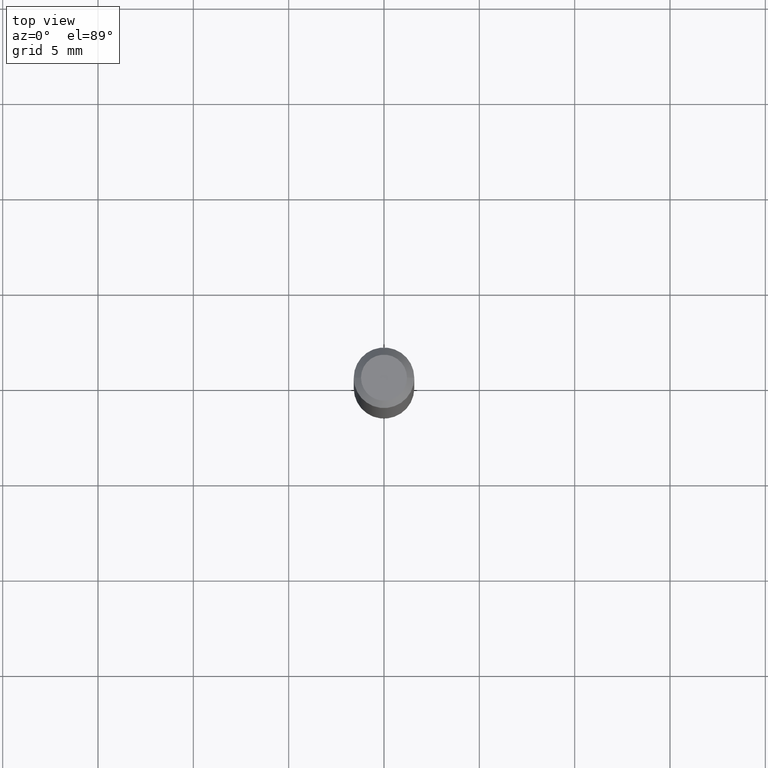
[diagram: clean part render]
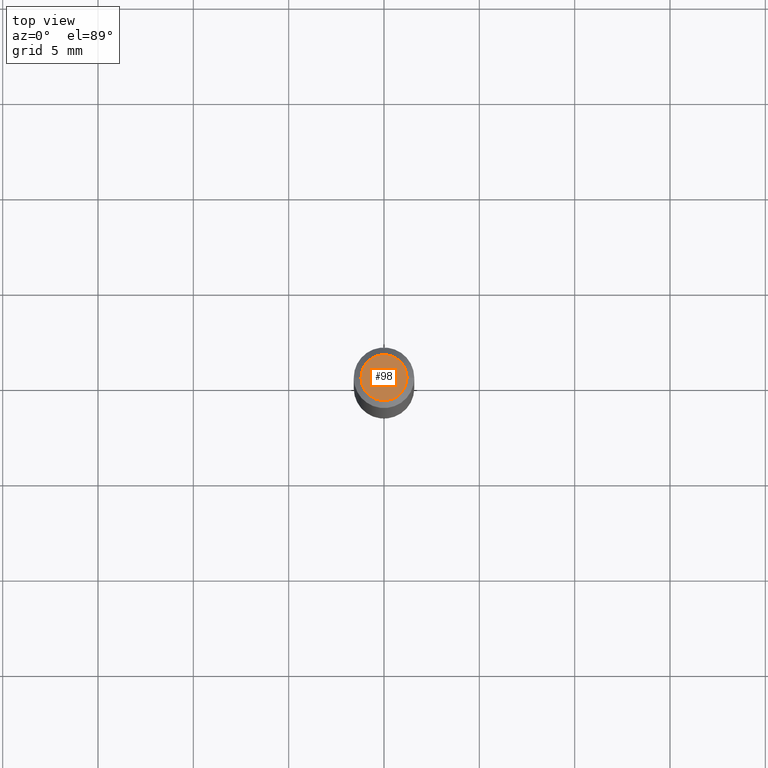
[diagram: same view with one face highlighted and labeled with its STEP entity id]
A machine part, top view. The second image highlights one B-rep face of the part: STEP entity #98.
In plain terms, the highlighted planar face has unit normal (0, -0, -1).
Its self-contained STEP definition (entity closure, byte-faithful):
#4 = CARTESIAN_POINT ( 'NONE',  ( -4.460165479722938536E-44, 6.367934238710582481E-30, 1.823848854028390842E-15 ) ) ;
#33 = DIRECTION ( 'NONE',  ( -1.000000000000000000, 6.982962677686265922E-15, -4.876176775795935793E-29 ) ) ;
#51 = DIRECTION ( 'NONE',  ( -2.445468806185136597E-29, 3.491481338843145583E-15, 1.000000000000000000 ) ) ;
#56 = VERTEX_POINT ( 'NONE', #253 ) ;
#94 = AXIS2_PLACEMENT_3D ( 'NONE', #126, #51, #311 ) ;
#98 = ADVANCED_FACE ( 'NONE', ( #402 ), #107, .F. ) ;
#107 = PLANE ( 'NONE',  #344 ) ;
#118 = ORIENTED_EDGE ( 'NONE', *, *, #286, .T. ) ;
#126 = CARTESIAN_POINT ( 'NONE',  ( -4.460165479722938536E-44, 6.367934238710582481E-30, 1.823848854028390842E-15 ) ) ;
#149 = EDGE_CURVE ( 'NONE', #56, #251, #347, .T. ) ;
#189 = ORIENTED_EDGE ( 'NONE', *, *, #149, .T. ) ;
#212 = EDGE_LOOP ( 'NONE', ( #118, #189 ) ) ;
#225 = CARTESIAN_POINT ( 'NONE',  ( 3.316907271900976096E-16, 0.04749999999999999362, 7.460790634191459752E-16 ) ) ;
#231 = AXIS2_PLACEMENT_3D ( 'NONE', #4, #365, #442 ) ;
#251 = VERTEX_POINT ( 'NONE', #303 ) ;
#253 = CARTESIAN_POINT ( 'NONE',  ( 0.04749999999999999362, -4.035134999187546083E-16, 1.823848854028393603E-15 ) ) ;
#286 = EDGE_CURVE ( 'NONE', #251, #56, #440, .T. ) ;
#303 = CARTESIAN_POINT ( 'NONE',  ( -0.04749999999999999362, 3.578768372314242553E-16, 1.823848854028388475E-15 ) ) ;
#311 = DIRECTION ( 'NONE',  ( 1.000000000000000000, -6.982962677686267499E-15, 5.108144071313017768E-29 ) ) ;
#344 = AXIS2_PLACEMENT_3D ( 'NONE', #225, #398, #33 ) ;
#347 = CIRCLE ( 'NONE', #94, 0.04749999999999999362 ) ;
#365 = DIRECTION ( 'NONE',  ( -2.445468806185136597E-29, 3.491481338843145583E-15, 1.000000000000000000 ) ) ;
#398 = DIRECTION ( 'NONE',  ( 2.438088387897960049E-29, -3.491481338843145188E-15, -1.000000000000000000 ) ) ;
#402 = FACE_OUTER_BOUND ( 'NONE', #212, .T. ) ;
#440 = CIRCLE ( 'NONE', #231, 0.04749999999999999362 ) ;
#442 = DIRECTION ( 'NONE',  ( 1.000000000000000000, -6.982962677686267499E-15, 5.108144071313017768E-29 ) ) ;